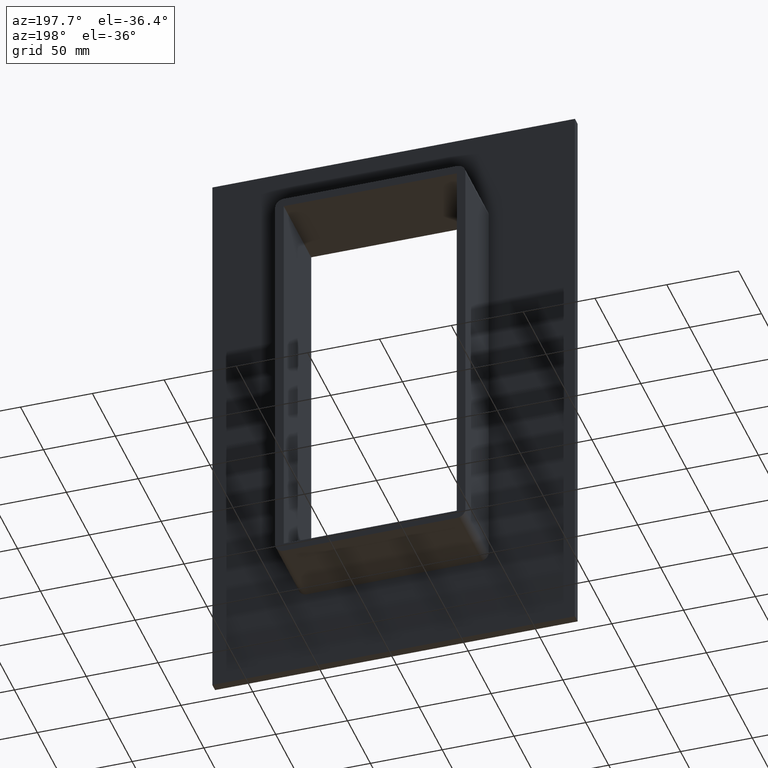
[diagram: clean part render]
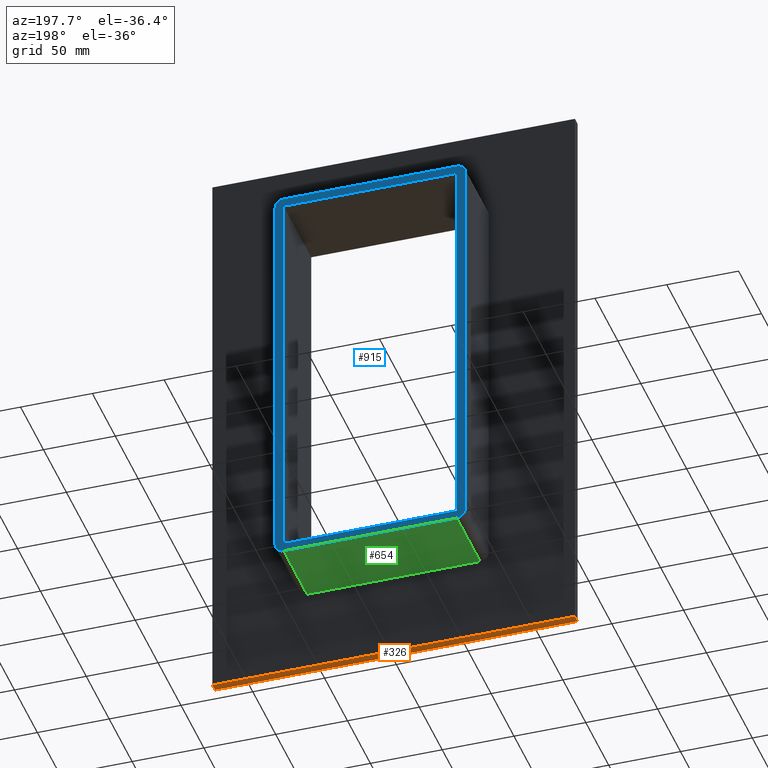
[diagram: same view with three faces highlighted in distinct colors, each labeled with its STEP entity id]
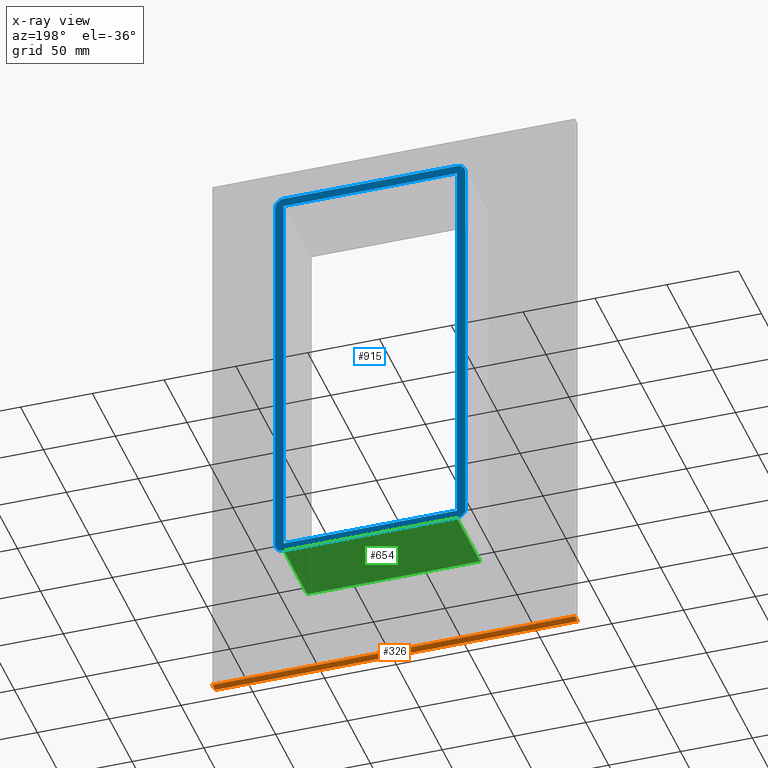
[diagram: x-ray of the same camera — body ghosted, the three highlighted faces saturated]
A machine part, auxiliary view with three faces highlighted in distinct colors.
The next image is the same camera in x-ray (body ghosted, the three faces saturated) — at least one of them is partly hidden behind the body in this view.
Their STEP definitions:

[orange] entity #326 — the highlighted planar face has unit normal (0, 0, -1).
#83=CARTESIAN_POINT('',(126.25,6.000000000000001,-205.0));
#84=VERTEX_POINT('',#83);
#91=CARTESIAN_POINT('',(-126.25,6.000000000000001,-205.0));
#92=VERTEX_POINT('',#91);
#93=CARTESIAN_POINT('',(126.25,6.000000000000001,-205.0));
#94=DIRECTION('',(-1.0,0.0,0.0));
#95=VECTOR('',#94,252.5);
#96=LINE('',#93,#95);
#97=EDGE_CURVE('',#84,#92,#96,.T.);
#193=CARTESIAN_POINT('',(-126.25,0.0,-205.0));
#194=VERTEX_POINT('',#193);
#201=CARTESIAN_POINT('',(126.25,0.0,-205.0));
#202=VERTEX_POINT('',#201);
#203=CARTESIAN_POINT('',(126.25,0.0,-205.0));
#204=DIRECTION('',(-1.0,0.0,0.0));
#205=VECTOR('',#204,252.5);
#206=LINE('',#203,#205);
#207=EDGE_CURVE('',#202,#194,#206,.T.);
#301=CARTESIAN_POINT('',(-126.25,0.0,-205.0));
#302=DIRECTION('',(0.0,1.0,0.0));
#303=VECTOR('',#302,6.000000000000001);
#304=LINE('',#301,#303);
#305=EDGE_CURVE('',#194,#92,#304,.T.);
#310=CARTESIAN_POINT('',(126.25,0.0,-205.0));
#311=DIRECTION('',(0.0,0.0,-1.0));
#312=DIRECTION('',(-1.0,0.0,0.0));
#313=AXIS2_PLACEMENT_3D('',#310,#311,#312);
#314=PLANE('',#313);
#315=ORIENTED_EDGE('',*,*,#207,.T.);
#316=ORIENTED_EDGE('',*,*,#305,.T.);
#317=ORIENTED_EDGE('',*,*,#97,.F.);
#318=CARTESIAN_POINT('',(126.25,0.0,-205.0));
#319=DIRECTION('',(0.0,1.0,0.0));
#320=VECTOR('',#319,6.000000000000001);
#321=LINE('',#318,#320);
#322=EDGE_CURVE('',#202,#84,#321,.T.);
#323=ORIENTED_EDGE('',*,*,#322,.F.);
#324=EDGE_LOOP('',(#315,#316,#317,#323));
#325=FACE_OUTER_BOUND('',#324,.T.);
#326=ADVANCED_FACE('',(#325),#314,.T.);

[blue] entity #915 — the highlighted planar face has unit normal (0, 1, 0).
#363=CARTESIAN_POINT('',(-60.249999999999993,57.0,-139.0));
#364=VERTEX_POINT('',#363);
#371=CARTESIAN_POINT('',(-60.249999999999993,57.0,139.0));
#372=VERTEX_POINT('',#371);
#373=CARTESIAN_POINT('',(-60.249999999999993,57.0,139.0));
#374=DIRECTION('',(0.0,0.0,-1.0));
#375=VECTOR('',#374,278.0);
#376=LINE('',#373,#375);
#377=EDGE_CURVE('',#372,#364,#376,.T.);
#434=CARTESIAN_POINT('',(66.250000000000014,57.0,139.0));
#435=VERTEX_POINT('',#434);
#442=CARTESIAN_POINT('',(60.249999999999993,57.0,145.0));
#443=VERTEX_POINT('',#442);
#444=CARTESIAN_POINT('',(60.25,57.0,139.0));
#445=DIRECTION('',(0.0,-1.0,0.0));
#446=DIRECTION('',(0.70710678118655,0.0,0.707106781186545));
#447=AXIS2_PLACEMENT_3D('',#444,#445,#446);
#448=CIRCLE('',#447,6.000000000000001);
#449=EDGE_CURVE('',#435,#443,#448,.T.);
#490=CARTESIAN_POINT('',(66.250000000000014,57.0,-139.0));
#491=VERTEX_POINT('',#490);
#498=CARTESIAN_POINT('',(66.250000000000014,57.0,139.0));
#499=DIRECTION('',(0.0,0.0,-1.0));
#500=VECTOR('',#499,278.0);
#501=LINE('',#498,#500);
#502=EDGE_CURVE('',#435,#491,#501,.T.);
#563=CARTESIAN_POINT('',(60.25,57.0,-145.0));
#564=VERTEX_POINT('',#563);
#571=CARTESIAN_POINT('',(60.25,57.0,-139.0));
#572=DIRECTION('',(0.0,-1.0,0.0));
#573=DIRECTION('',(0.707106781186548,0.0,-0.707106781186548));
#574=AXIS2_PLACEMENT_3D('',#571,#572,#573);
#575=CIRCLE('',#574,6.000000000000002);
#576=EDGE_CURVE('',#564,#491,#575,.T.);
#637=CARTESIAN_POINT('',(-60.249999999999979,57.0,-145.0));
#638=VERTEX_POINT('',#637);
#645=CARTESIAN_POINT('',(60.250000000000007,57.0,-145.0));
#646=DIRECTION('',(-1.0,0.0,0.0));
#647=VECTOR('',#646,120.49999999999997);
#648=LINE('',#645,#647);
#649=EDGE_CURVE('',#564,#638,#648,.T.);
#744=CARTESIAN_POINT('',(-66.249999999999986,57.0,-139.0));
#745=VERTEX_POINT('',#744);
#752=CARTESIAN_POINT('',(-60.249999999999986,57.0,-139.0));
#753=DIRECTION('',(0.0,-1.0,0.0));
#754=DIRECTION('',(-0.707106781186548,0.0,-0.707106781186548));
#755=AXIS2_PLACEMENT_3D('',#752,#753,#754);
#756=CIRCLE('',#755,6.000000000000002);
#757=EDGE_CURVE('',#745,#638,#756,.T.);
#769=CARTESIAN_POINT('',(-66.249999999999986,57.0,139.0));
#770=VERTEX_POINT('',#769);
#777=CARTESIAN_POINT('',(-66.249999999999986,57.0,-139.0));
#778=DIRECTION('',(0.0,0.0,1.0));
#779=VECTOR('',#778,278.0);
#780=LINE('',#777,#779);
#781=EDGE_CURVE('',#745,#770,#780,.T.);
#793=CARTESIAN_POINT('',(-60.249999999999986,57.0,145.0));
#794=VERTEX_POINT('',#793);
#801=CARTESIAN_POINT('',(-60.249999999999986,57.0,139.0));
#802=DIRECTION('',(0.0,-1.0,0.0));
#803=DIRECTION('',(-0.707106781186548,0.0,0.707106781186548));
#804=AXIS2_PLACEMENT_3D('',#801,#802,#803);
#805=CIRCLE('',#804,6.000000000000002);
#806=EDGE_CURVE('',#794,#770,#805,.T.);
#819=CARTESIAN_POINT('',(-60.249999999999979,57.0,145.0));
#820=DIRECTION('',(1.0,0.0,0.0));
#821=VECTOR('',#820,120.49999999999997);
#822=LINE('',#819,#821);
#823=EDGE_CURVE('',#794,#443,#822,.T.);
#834=CARTESIAN_POINT('',(60.249999999999993,57.0,-139.0));
#835=VERTEX_POINT('',#834);
#843=CARTESIAN_POINT('',(60.249999999999993,57.0,139.0));
#844=VERTEX_POINT('',#843);
#851=CARTESIAN_POINT('',(60.249999999999993,57.0,-139.0));
#852=DIRECTION('',(0.0,0.0,1.0));
#853=VECTOR('',#852,278.0);
#854=LINE('',#851,#853);
#855=EDGE_CURVE('',#835,#844,#854,.T.);
#866=CARTESIAN_POINT('',(60.249999999999979,57.0,139.0));
#867=DIRECTION('',(-1.0,0.0,0.0));
#868=VECTOR('',#867,120.49999999999997);
#869=LINE('',#866,#868);
#870=EDGE_CURVE('',#844,#372,#869,.T.);
#885=CARTESIAN_POINT('',(-60.25,57.0,-139.0));
#886=DIRECTION('',(1.0,0.0,0.0));
#887=VECTOR('',#886,120.5);
#888=LINE('',#885,#887);
#889=EDGE_CURVE('',#364,#835,#888,.T.);
#894=CARTESIAN_POINT('',(6.437980E-015,57.0,0.0));
#895=DIRECTION('',(0.0,1.0,0.0));
#896=DIRECTION('',(0.0,0.0,1.0));
#897=AXIS2_PLACEMENT_3D('',#894,#895,#896);
#898=PLANE('',#897);
#899=ORIENTED_EDGE('',*,*,#576,.F.);
#900=ORIENTED_EDGE('',*,*,#649,.T.);
#901=ORIENTED_EDGE('',*,*,#757,.F.);
#902=ORIENTED_EDGE('',*,*,#781,.T.);
#903=ORIENTED_EDGE('',*,*,#806,.F.);
#904=ORIENTED_EDGE('',*,*,#823,.T.);
#905=ORIENTED_EDGE('',*,*,#449,.F.);
#906=ORIENTED_EDGE('',*,*,#502,.T.);
#907=EDGE_LOOP('',(#899,#900,#901,#902,#903,#904,#905,#906));
#908=FACE_OUTER_BOUND('',#907,.T.);
#909=ORIENTED_EDGE('',*,*,#855,.T.);
#910=ORIENTED_EDGE('',*,*,#870,.T.);
#911=ORIENTED_EDGE('',*,*,#377,.T.);
#912=ORIENTED_EDGE('',*,*,#889,.T.);
#913=EDGE_LOOP('',(#909,#910,#911,#912));
#914=FACE_BOUND('',#913,.T.);
#915=ADVANCED_FACE('',(#908,#914),#898,.T.);

[green] entity #654 — the highlighted planar face has unit normal (0, 0, -1).
#107=CARTESIAN_POINT('',(-60.249999999999986,6.000000000000001,-145.0));
#108=VERTEX_POINT('',#107);
#118=CARTESIAN_POINT('',(60.25,6.000000000000001,-145.0));
#119=VERTEX_POINT('',#118);
#120=CARTESIAN_POINT('',(60.250000000000007,6.000000000000001,-145.0));
#121=DIRECTION('',(-1.0,0.0,0.0));
#122=VECTOR('',#121,120.49999999999999);
#123=LINE('',#120,#122);
#124=EDGE_CURVE('',#119,#108,#123,.T.);
#563=CARTESIAN_POINT('',(60.25,57.0,-145.0));
#564=VERTEX_POINT('',#563);
#565=CARTESIAN_POINT('',(60.25,6.000000000000001,-145.0));
#566=DIRECTION('',(0.0,1.0,0.0));
#567=VECTOR('',#566,51.0);
#568=LINE('',#565,#567);
#569=EDGE_CURVE('',#119,#564,#568,.T.);
#631=CARTESIAN_POINT('',(66.250000000000014,0.0,-145.0));
#632=DIRECTION('',(0.0,0.0,-1.0));
#633=DIRECTION('',(-1.0,0.0,0.0));
#634=AXIS2_PLACEMENT_3D('',#631,#632,#633);
#635=PLANE('',#634);
#636=ORIENTED_EDGE('',*,*,#124,.T.);
#637=CARTESIAN_POINT('',(-60.249999999999979,57.0,-145.0));
#638=VERTEX_POINT('',#637);
#639=CARTESIAN_POINT('',(-60.249999999999986,57.0,-145.0));
#640=DIRECTION('',(0.0,-1.0,0.0));
#641=VECTOR('',#640,51.0);
#642=LINE('',#639,#641);
#643=EDGE_CURVE('',#638,#108,#642,.T.);
#644=ORIENTED_EDGE('',*,*,#643,.F.);
#645=CARTESIAN_POINT('',(60.250000000000007,57.0,-145.0));
#646=DIRECTION('',(-1.0,0.0,0.0));
#647=VECTOR('',#646,120.49999999999997);
#648=LINE('',#645,#647);
#649=EDGE_CURVE('',#564,#638,#648,.T.);
#650=ORIENTED_EDGE('',*,*,#649,.F.);
#651=ORIENTED_EDGE('',*,*,#569,.F.);
#652=EDGE_LOOP('',(#636,#644,#650,#651));
#653=FACE_OUTER_BOUND('',#652,.T.);
#654=ADVANCED_FACE('',(#653),#635,.T.);